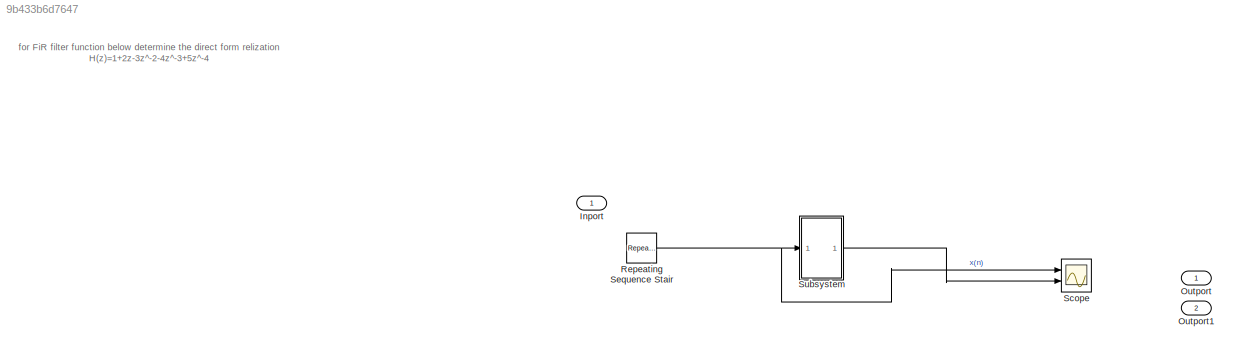
MODEL slx_9b433b6d7647
KIND model
CONFIG AbsTol = auto
CONFIG EnableMultiTasking = off
CONFIG FixedStep = auto
CONFIG MaxStep = 0.1
CONFIG MinStep = auto
CONFIG RelTol = 1e-3
CONFIG SampleTimeConstraint = Unconstrained
CONFIG SolverName = VariableStepDiscrete
CONFIG StartTime = 0.0
CONFIG StopTime = 10.0
BLOCK [Inport] Inport
BLOCK [Outport] Outport
BLOCK [Outport] Outport1
  Port = 2
BLOCK [Reference] Repeating Sequence Stair  REF=simulink/Sources/Repeating
Sequence
Stair
  Ports = [0, 1]
  SourceBlock = simulink/Sources/Repeating\nSequence\nStair
  SourceProductBaseCode = SL
  SourceType = Repeating Sequence Stair
BLOCK [Scope] Scope
  Floating = off
  NumInputPorts = 2
  Ports = [2]
  ScopeSpecificationString = Simulink.scopes.TimeScopeBlockCfg('CurrentConfiguration', extmgr.ConfigurationSet(extmgr.Configuration('Core','General UI',true),extmgr.Configuration('Core','Source UI',true),extmgr.Configuration('Sources','WiredSimulink',true),extmgr.Configuration('Visuals','Time Domain',true,'SerializedDisplays',{struct('MinYLimReal','-0.125','MaxYLimReal','1.125','YLabelReal','','MinYLimMag','0.00000','MaxYLimM...<+2006ch>
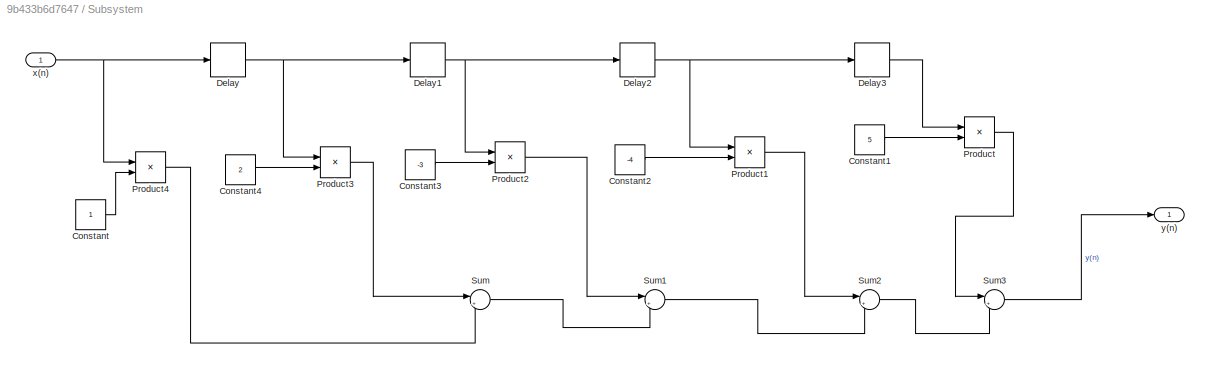
BLOCK [SubSystem] Subsystem
  Ports = [1, 1]
  RequestExecContextInheritance = off
  TreatAsAtomicUnit = on
BLOCK [Constant] Subsystem/Constant
BLOCK [Constant] Subsystem/Constant1
  Value = 5
BLOCK [Constant] Subsystem/Constant2
  Value = -4
BLOCK [Constant] Subsystem/Constant3
  Value = -3
BLOCK [Constant] Subsystem/Constant4
  Value = 2
BLOCK [Delay] Subsystem/Delay
  DelayLength = 1
  InputPortMap = u0
  Ports = [1, 1]
BLOCK [Delay] Subsystem/Delay1
  DelayLength = 1
  InputPortMap = u0
  Ports = [1, 1]
BLOCK [Delay] Subsystem/Delay2
  DelayLength = 1
  InputPortMap = u0
  Ports = [1, 1]
BLOCK [Delay] Subsystem/Delay3
  DelayLength = 1
  InputPortMap = u0
  Ports = [1, 1]
BLOCK [Product] Subsystem/Product
  Ports = [2, 1]
BLOCK [Product] Subsystem/Product1
  Ports = [2, 1]
BLOCK [Product] Subsystem/Product2
  Ports = [2, 1]
BLOCK [Product] Subsystem/Product3
  Ports = [2, 1]
BLOCK [Product] Subsystem/Product4
  Ports = [2, 1]
BLOCK [Sum] Subsystem/Sum
  Inputs = |++
  Ports = [2, 1]
BLOCK [Sum] Subsystem/Sum1
  Inputs = |++
  Ports = [2, 1]
BLOCK [Sum] Subsystem/Sum2
  Inputs = |++
  Ports = [2, 1]
BLOCK [Sum] Subsystem/Sum3
  Inputs = |++
  Ports = [2, 1]
BLOCK [Inport] Subsystem/x(n)
BLOCK [Outport] Subsystem/y(n)
ANNOTATION (root): for FiR filter function below determine the direct form relization H(z)=1+2z-3z^-2-4z^-3+5z^-4
NET Repeating Sequence Stair:1 -> Scope:1, Subsystem:1
LINE Subsystem/Constant1:1 -> Subsystem/Product:2
LINE Subsystem/Constant2:1 -> Subsystem/Product1:2
LINE Subsystem/Constant3:1 -> Subsystem/Product2:2
LINE Subsystem/Constant4:1 -> Subsystem/Product3:2
LINE Subsystem/Constant:1 -> Subsystem/Product4:2
NET Subsystem/Delay1:1 -> Subsystem/Delay2:1, Subsystem/Product2:1
NET Subsystem/Delay2:1 -> Subsystem/Delay3:1, Subsystem/Product1:1
LINE Subsystem/Delay3:1 -> Subsystem/Product:1
NET Subsystem/Delay:1 -> Subsystem/Delay1:1, Subsystem/Product3:1
LINE Subsystem/Product1:1 -> Subsystem/Sum2:1
LINE Subsystem/Product2:1 -> Subsystem/Sum1:1
LINE Subsystem/Product3:1 -> Subsystem/Sum:1
LINE Subsystem/Product4:1 -> Subsystem/Sum:2
LINE Subsystem/Product:1 -> Subsystem/Sum3:1
LINE Subsystem/Sum1:1 -> Subsystem/Sum2:2
LINE Subsystem/Sum2:1 -> Subsystem/Sum3:2
LINE Subsystem/Sum3:1 -> Subsystem/y(n):1
LINE Subsystem/Sum:1 -> Subsystem/Sum1:2
NET Subsystem/x(n):1 -> Subsystem/Delay:1, Subsystem/Product4:1
LINE Subsystem:1 -> Scope:2
note: NET lines group one-source signal fan-out (src -> all destinations, sorted); 1:1 wires keep LINE
